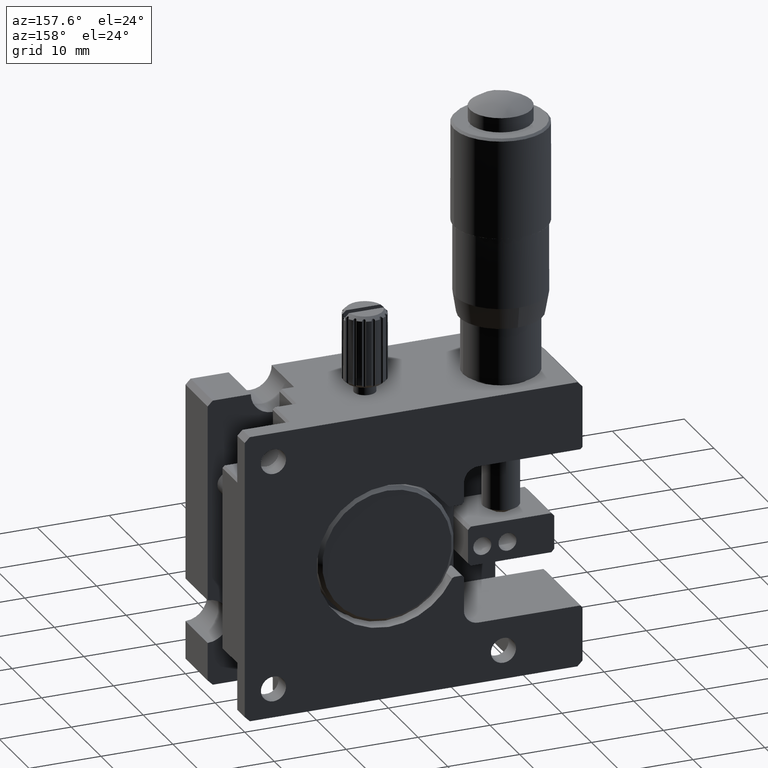
[diagram: clean part render]
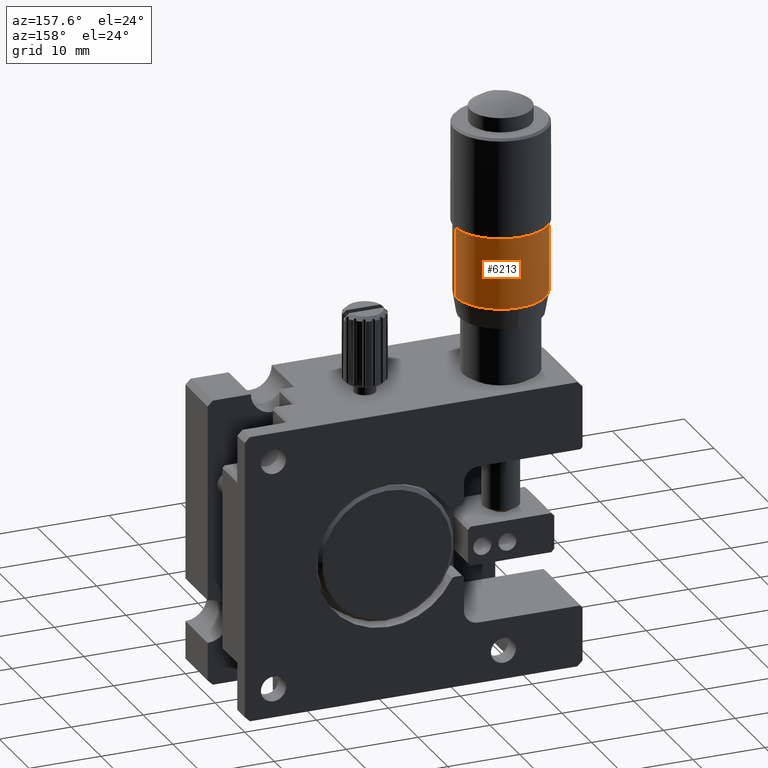
[diagram: same view with one face highlighted and labeled with its STEP entity id]
A machine part, auxiliary view. The second image highlights one B-rep face of the part: STEP entity #6213.
In plain terms, the highlighted cylindrical surface (partial cylindrical patch) has radius 6.25 mm, axis along (0, 0, -1).
Its self-contained STEP definition (entity closure, byte-faithful):
#1899 = AXIS2_PLACEMENT_3D ( 'NONE', #8251, #8246, #8219 ) ;
#1954 = AXIS2_PLACEMENT_3D ( 'NONE', #8532, #8542, #8549 ) ;
#1986 = AXIS2_PLACEMENT_3D ( 'NONE', #8517, #8544, #8529 ) ;
#1990 = AXIS2_PLACEMENT_3D ( 'NONE', #8525, #8537, #8564 ) ;
#2043 = EDGE_LOOP ( 'NONE', ( #2438, #2509, #2473, #2450, #2424 ) ) ;
#2424 = ORIENTED_EDGE ( 'NONE', *, *, #10175, .F. ) ;
#2438 = ORIENTED_EDGE ( 'NONE', *, *, #6897, .T. ) ;
#2450 = ORIENTED_EDGE ( 'NONE', *, *, #6910, .T. ) ;
#2473 = ORIENTED_EDGE ( 'NONE', *, *, #6907, .T. ) ;
#2509 = ORIENTED_EDGE ( 'NONE', *, *, #6915, .T. ) ;
#3473 = VERTEX_POINT ( 'NONE', #5453 ) ;
#3558 = VERTEX_POINT ( 'NONE', #5387 ) ;
#3617 = VERTEX_POINT ( 'NONE', #7888 ) ;
#3624 = VERTEX_POINT ( 'NONE', #7900 ) ;
#3626 = VERTEX_POINT ( 'NONE', #7907 ) ;
#5387 = CARTESIAN_POINT ( 'NONE',  ( -4.749999999999999100, 13.00000000000000200, 21.50000000000000000 ) ) ;
#5453 = CARTESIAN_POINT ( 'NONE',  ( -4.749999999999999100, 13.00000000000000200, 11.49999999999999600 ) ) ;
#6213 = ADVANCED_FACE ( 'NONE', ( #9923 ), #9933, .T. ) ;
#6897 = EDGE_CURVE ( 'NONE', #3558, #3624, #8904, .T. ) ;
#6907 = EDGE_CURVE ( 'NONE', #3617, #3626, #8896, .T. ) ;
#6910 = EDGE_CURVE ( 'NONE', #3626, #3473, #8878, .T. ) ;
#6915 = EDGE_CURVE ( 'NONE', #3624, #3617, #8861, .T. ) ;
#7888 = CARTESIAN_POINT ( 'NONE',  ( 7.750000000000001800, 13.00000000000000200, 11.49999999999999600 ) ) ;
#7900 = CARTESIAN_POINT ( 'NONE',  ( 7.750000000000001800, 13.00000000000000200, 21.50000000000000000 ) ) ;
#7907 = CARTESIAN_POINT ( 'NONE',  ( 1.500000000000002700, 19.25000000000552400, 11.49999999999999600 ) ) ;
#8161 = DIRECTION ( 'NONE',  ( 6.123233995736769700E-017, 0.0000000000000000000, -1.000000000000000000 ) ) ;
#8168 = CARTESIAN_POINT ( 'NONE',  ( -4.749999999999997300, 13.00000000000000200, -19.50000000000000400 ) ) ;
#8219 = DIRECTION ( 'NONE',  ( -1.000000000000000000, 0.0000000000000000000, 0.0000000000000000000 ) ) ;
#8246 = DIRECTION ( 'NONE',  ( 6.123233995736769700E-017, 0.0000000000000000000, -1.000000000000000000 ) ) ;
#8251 = CARTESIAN_POINT ( 'NONE',  ( 1.500000000000003600, 13.00000000000000200, -19.50000000000000400 ) ) ;
#8517 = CARTESIAN_POINT ( 'NONE',  ( 1.500000000000001600, 13.00000000000000200, 11.49999999999999600 ) ) ;
#8525 = CARTESIAN_POINT ( 'NONE',  ( 1.500000000000001600, 13.00000000000000200, 11.49999999999999600 ) ) ;
#8529 = DIRECTION ( 'NONE',  ( -1.000000000000000000, 0.0000000000000000000, 0.0000000000000000000 ) ) ;
#8532 = CARTESIAN_POINT ( 'NONE',  ( 1.500000000000001100, 13.00000000000000200, 21.50000000000000000 ) ) ;
#8537 = DIRECTION ( 'NONE',  ( -6.123233995736769700E-017, -0.0000000000000000000, 1.000000000000000000 ) ) ;
#8542 = DIRECTION ( 'NONE',  ( 6.123233995736769700E-017, 0.0000000000000000000, -1.000000000000000000 ) ) ;
#8544 = DIRECTION ( 'NONE',  ( -6.123233995736769700E-017, -0.0000000000000000000, 1.000000000000000000 ) ) ;
#8549 = DIRECTION ( 'NONE',  ( -1.000000000000000000, 0.0000000000000000000, 0.0000000000000000000 ) ) ;
#8555 = CARTESIAN_POINT ( 'NONE',  ( 7.750000000000003600, 13.00000000000000200, -19.50000000000000400 ) ) ;
#8564 = DIRECTION ( 'NONE',  ( -1.000000000000000000, 8.326672684688674100E-016, 0.0000000000000000000 ) ) ;
#8586 = DIRECTION ( 'NONE',  ( 6.123233995736769700E-017, 0.0000000000000000000, -1.000000000000000000 ) ) ;
#8861 = LINE ( 'NONE', #8555, #8881 ) ;
#8878 = CIRCLE ( 'NONE', #1990, 6.250000000000000000 ) ;
#8881 = VECTOR ( 'NONE', #8586, 1000.000000000000000 ) ;
#8896 = CIRCLE ( 'NONE', #1986, 6.250000000000000000 ) ;
#8904 = CIRCLE ( 'NONE', #1954, 6.250000000000000000 ) ;
#9263 = VECTOR ( 'NONE', #8161, 1000.000000000000000 ) ;
#9283 = LINE ( 'NONE', #8168, #9263 ) ;
#9923 = FACE_OUTER_BOUND ( 'NONE', #2043, .T. ) ;
#9933 = CYLINDRICAL_SURFACE ( 'NONE', #1899, 6.250000000000000000 ) ;
#10175 = EDGE_CURVE ( 'NONE', #3558, #3473, #9283, .T. ) ;